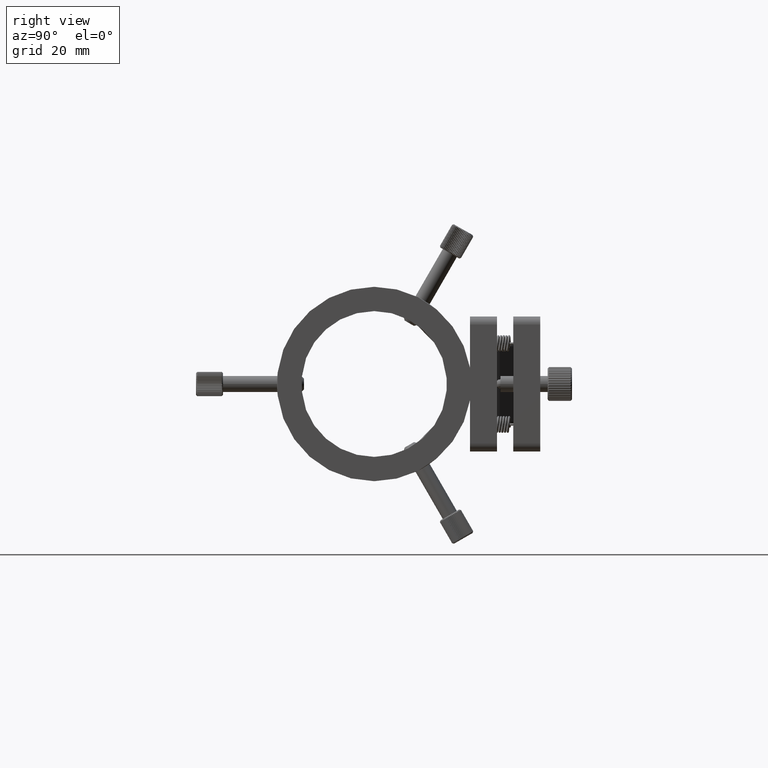
[diagram: clean part render]
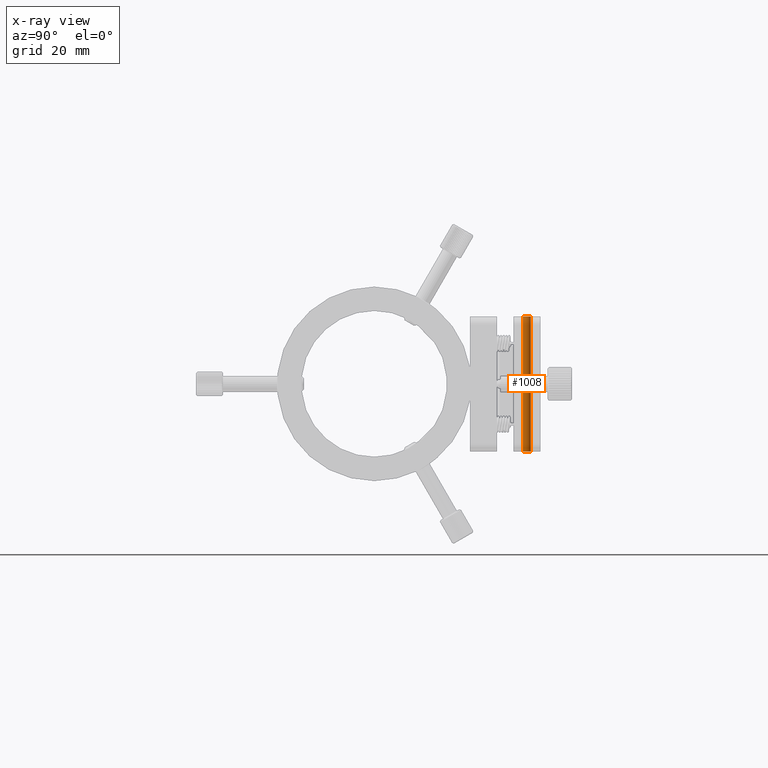
[diagram: x-ray — body ghosted, one internal face saturated and labeled with its STEP entity id]
A machine part, right view, then the same camera in x-ray: the body is ghosted and one INTERNAL B-rep face — a face not visible from any outside direction — is saturated and labeled: STEP entity #1008.
In plain terms, the highlighted cylindrical surface (edge-blend (fillet) strip) has radius 1.5 mm, axis along (0, -0, 1).
Its self-contained STEP definition (entity closure, byte-faithful):
#333 = DIRECTION ( 'NONE',  ( 0.0000000000000000000, 1.000000000000000000, 0.0000000000000000000 ) ) ;
#1008 = ADVANCED_FACE ( 'NONE', ( #36894 ), #23323, .T. ) ;
#1441 = ORIENTED_EDGE ( 'NONE', *, *, #10513, .F. ) ;
#2857 = CIRCLE ( 'NONE', #16302, 1.499999999999999600 ) ;
#4482 = CARTESIAN_POINT ( 'NONE',  ( -95.13306085376933700, 2.087042082954892600, -24.99999999999992900 ) ) ;
#5943 = CARTESIAN_POINT ( 'NONE',  ( -95.13306085376932200, 5.087042082954891200, -24.99999999999992900 ) ) ;
#6084 = VERTEX_POINT ( 'NONE', #14431 ) ;
#6486 = EDGE_CURVE ( 'NONE', #41931, #6084, #32464, .T. ) ;
#9431 = VERTEX_POINT ( 'NONE', #11977 ) ;
#9731 = AXIS2_PLACEMENT_3D ( 'NONE', #35105, #39031, #27685 ) ;
#10513 = EDGE_CURVE ( 'NONE', #27809, #9431, #14511, .T. ) ;
#11977 = CARTESIAN_POINT ( 'NONE',  ( -95.13306085376932200, 2.087042082954892100, 25.00000000000007500 ) ) ;
#14177 = VECTOR ( 'NONE', #20012, 1000.000000000000000 ) ;
#14431 = CARTESIAN_POINT ( 'NONE',  ( -95.13306085376932200, 5.087042082954891200, 25.00000000000007500 ) ) ;
#14436 = ORIENTED_EDGE ( 'NONE', *, *, #6486, .T. ) ;
#14511 = LINE ( 'NONE', #4482, #41607 ) ;
#16302 = AXIS2_PLACEMENT_3D ( 'NONE', #33946, #34417, #333 ) ;
#18307 = EDGE_CURVE ( 'NONE', #6084, #9431, #2857, .T. ) ;
#18654 = CARTESIAN_POINT ( 'NONE',  ( -95.13306085376932200, 2.087042082954892600, -24.99999999999992900 ) ) ;
#20012 = DIRECTION ( 'NONE',  ( 1.665334536937735300E-016, -2.652399341388103000E-017, 1.000000000000000000 ) ) ;
#22176 = CIRCLE ( 'NONE', #40353, 1.499999999999999100 ) ;
#23323 = CYLINDRICAL_SURFACE ( 'NONE', #9731, 1.499999999999999600 ) ;
#23696 = DIRECTION ( 'NONE',  ( 0.0000000000000000000, 1.000000000000000000, 0.0000000000000000000 ) ) ;
#25390 = EDGE_LOOP ( 'NONE', ( #40774, #14436, #37473, #1441 ) ) ;
#27685 = DIRECTION ( 'NONE',  ( 0.0000000000000000000, -1.000000000000000000, 0.0000000000000000000 ) ) ;
#27809 = VERTEX_POINT ( 'NONE', #18654 ) ;
#30775 = CARTESIAN_POINT ( 'NONE',  ( -95.13306085376933700, 3.587042082954892100, -24.99999999999992900 ) ) ;
#32315 = EDGE_CURVE ( 'NONE', #41931, #27809, #22176, .T. ) ;
#32464 = LINE ( 'NONE', #46690, #14177 ) ;
#33946 = CARTESIAN_POINT ( 'NONE',  ( -95.13306085376929400, 3.587042082954891700, 25.00000000000007500 ) ) ;
#34417 = DIRECTION ( 'NONE',  ( -1.665334536937735300E-016, 2.652399341388103000E-017, -1.000000000000000000 ) ) ;
#34903 = DIRECTION ( 'NONE',  ( -1.665334536937735300E-016, 2.652399341388103000E-017, -1.000000000000000000 ) ) ;
#35105 = CARTESIAN_POINT ( 'NONE',  ( -95.13306085376933700, 3.587042082954892100, -24.99999999999992900 ) ) ;
#36894 = FACE_OUTER_BOUND ( 'NONE', #25390, .T. ) ;
#37473 = ORIENTED_EDGE ( 'NONE', *, *, #18307, .T. ) ;
#38406 = DIRECTION ( 'NONE',  ( 1.665334536937735300E-016, -2.652399341388103000E-017, 1.000000000000000000 ) ) ;
#39031 = DIRECTION ( 'NONE',  ( 1.665334536937735300E-016, -2.652399341388103000E-017, 1.000000000000000000 ) ) ;
#40353 = AXIS2_PLACEMENT_3D ( 'NONE', #30775, #34903, #23696 ) ;
#40774 = ORIENTED_EDGE ( 'NONE', *, *, #32315, .F. ) ;
#41607 = VECTOR ( 'NONE', #38406, 1000.000000000000000 ) ;
#41931 = VERTEX_POINT ( 'NONE', #5943 ) ;
#46690 = CARTESIAN_POINT ( 'NONE',  ( -95.13306085376933700, 5.087042082954891200, -24.99999999999992900 ) ) ;